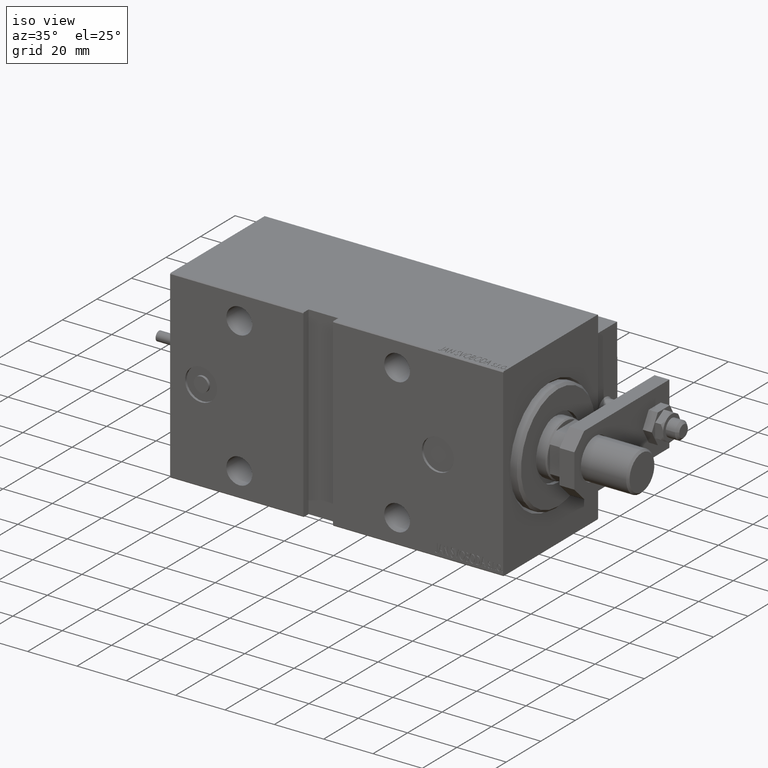
[diagram: clean part render]
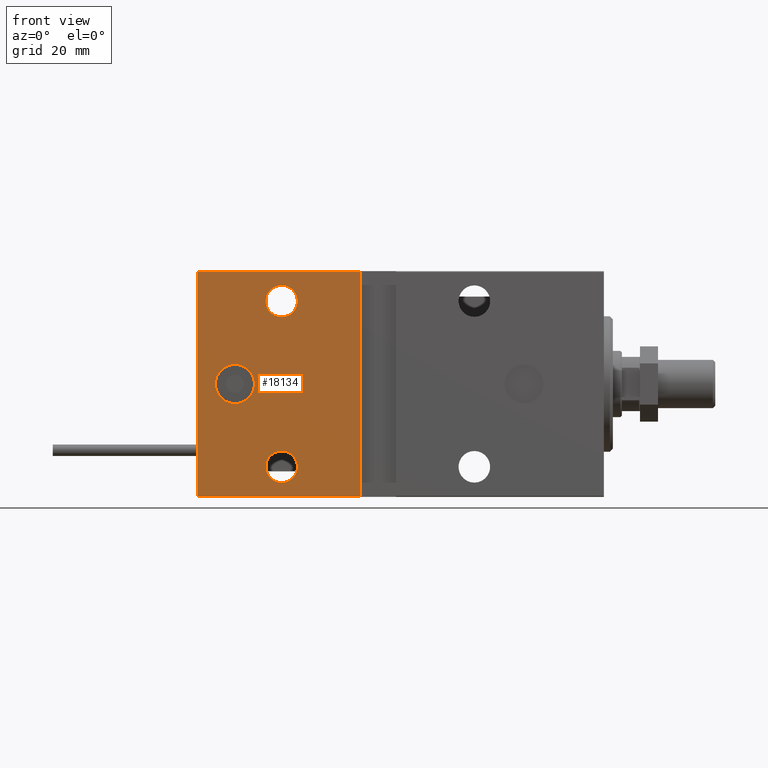
[diagram: tour spotlight — one face highlighted and labeled with its STEP entity id]
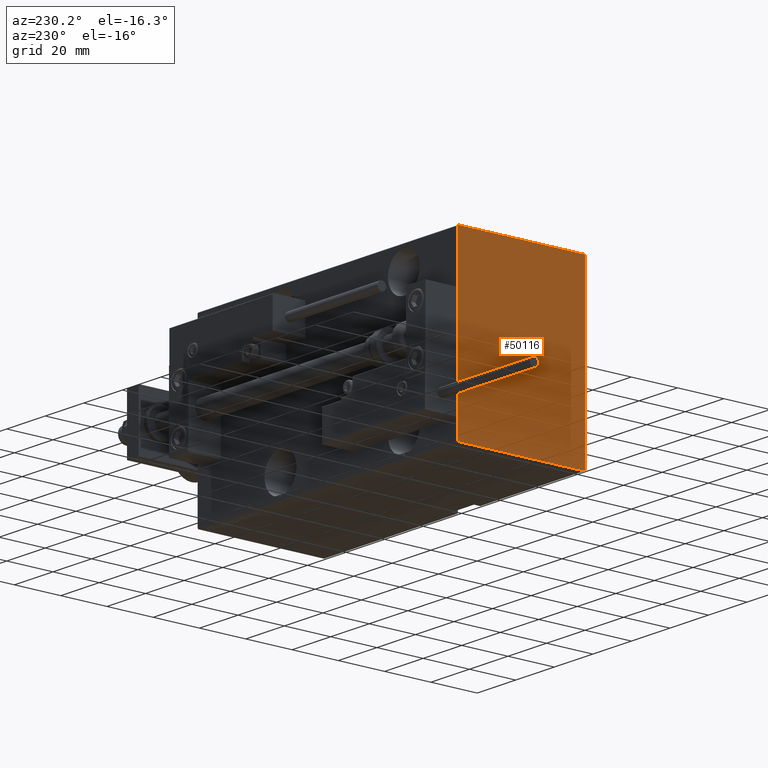
[diagram: tour spotlight — one face highlighted and labeled with its STEP entity id]
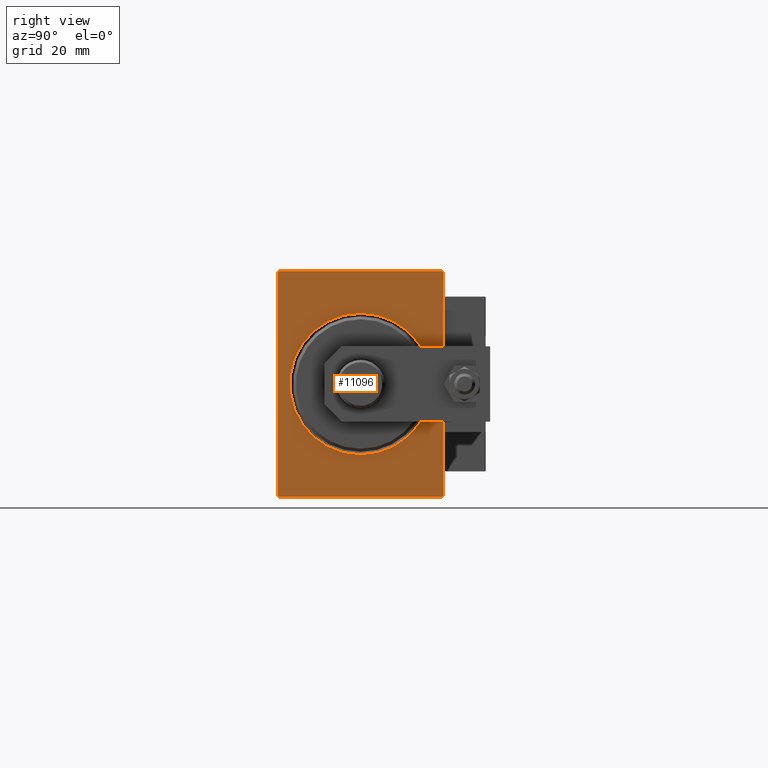
[diagram: tour spotlight — one face highlighted and labeled with its STEP entity id]
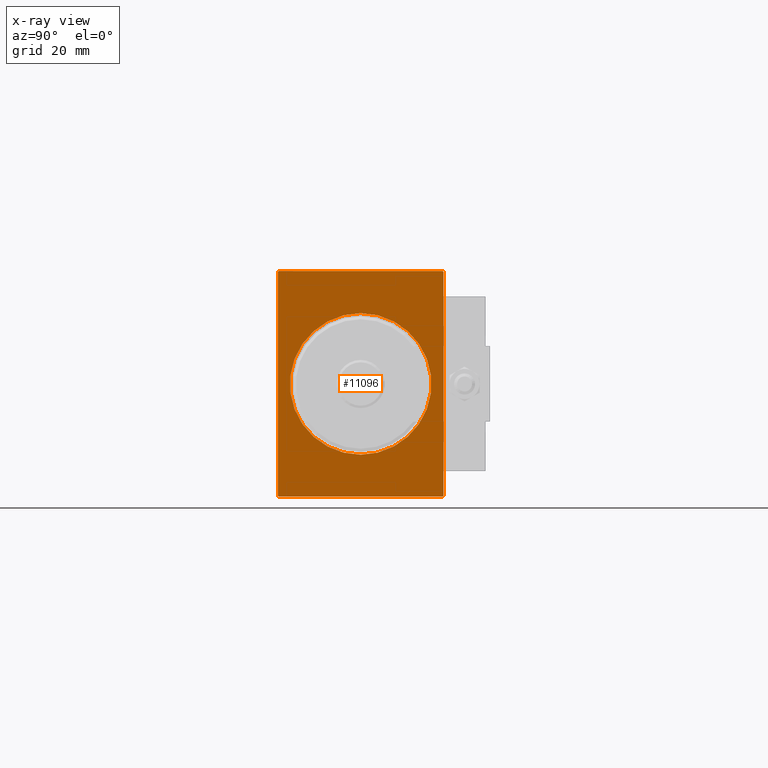
[diagram: x-ray of the same camera — body ghosted, this tour face saturated]
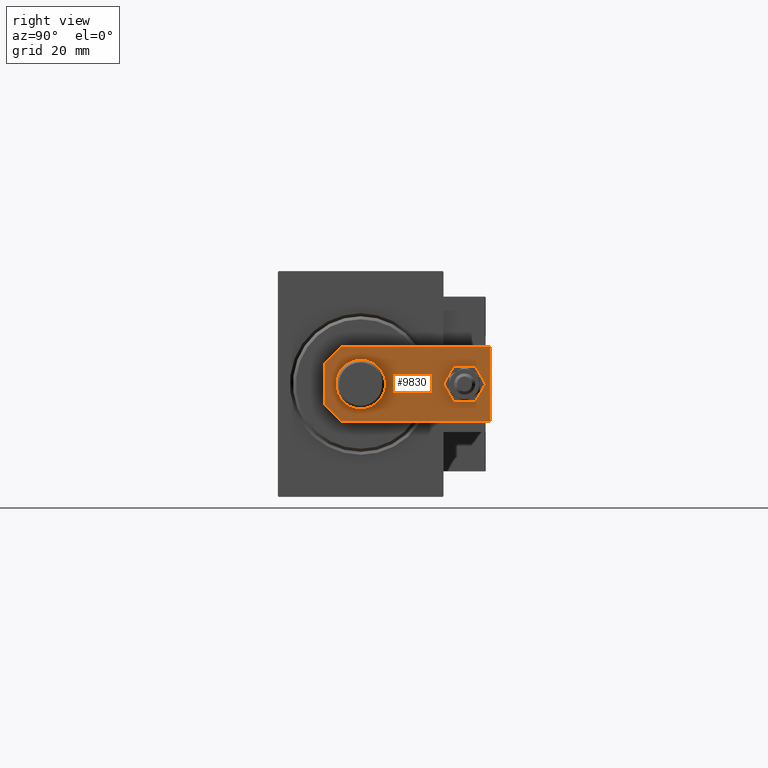
[diagram: tour spotlight — one face highlighted and labeled with its STEP entity id]
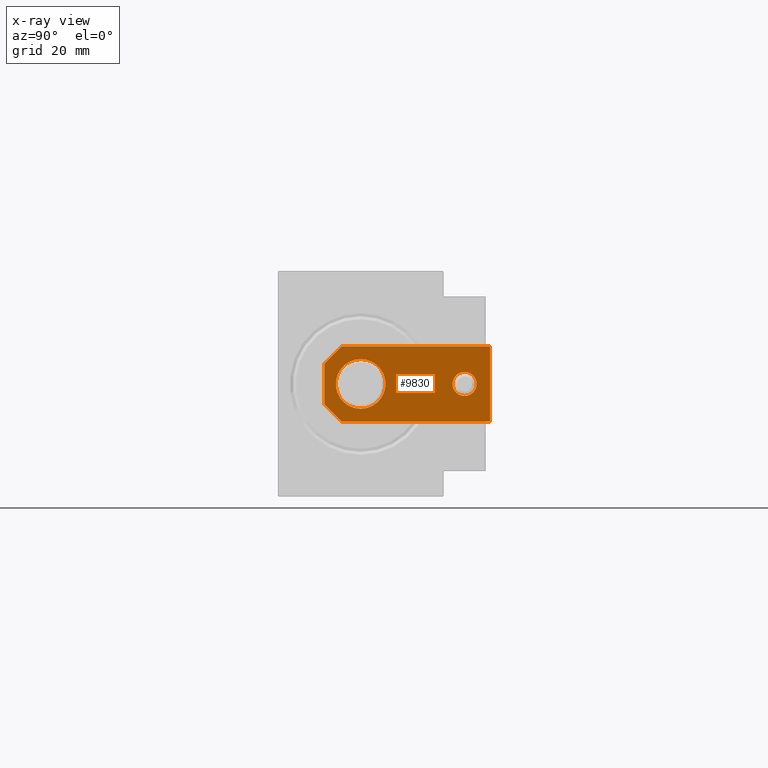
[diagram: x-ray of the same camera — body ghosted, this tour face saturated]
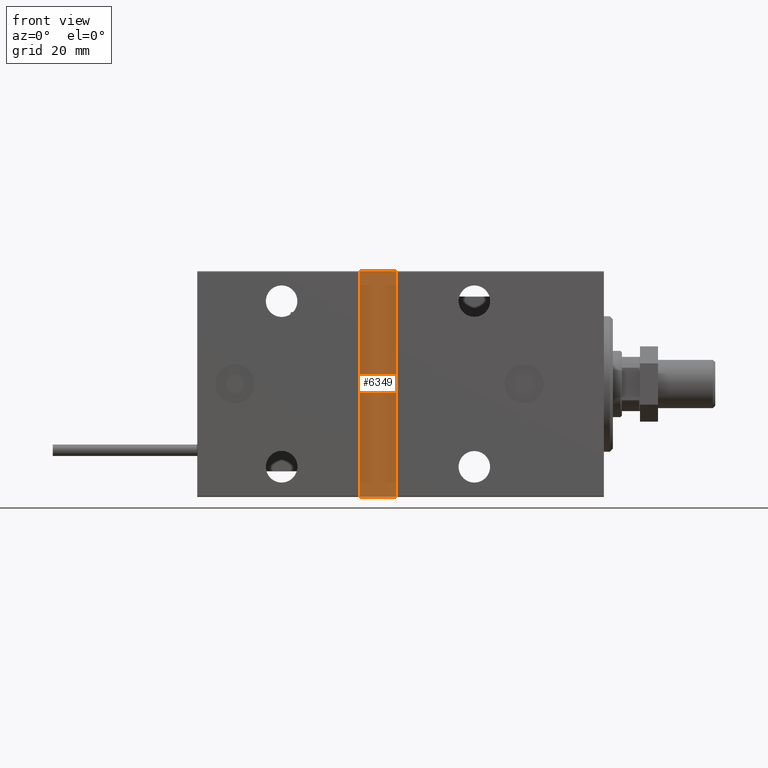
[diagram: tour spotlight — one face highlighted and labeled with its STEP entity id]
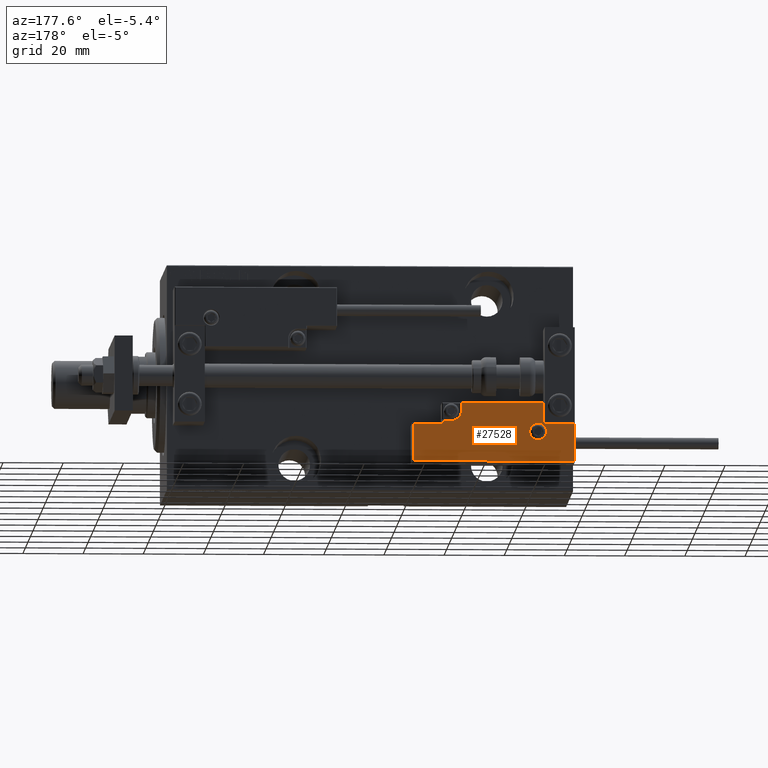
[diagram: tour spotlight — one face highlighted and labeled with its STEP entity id]
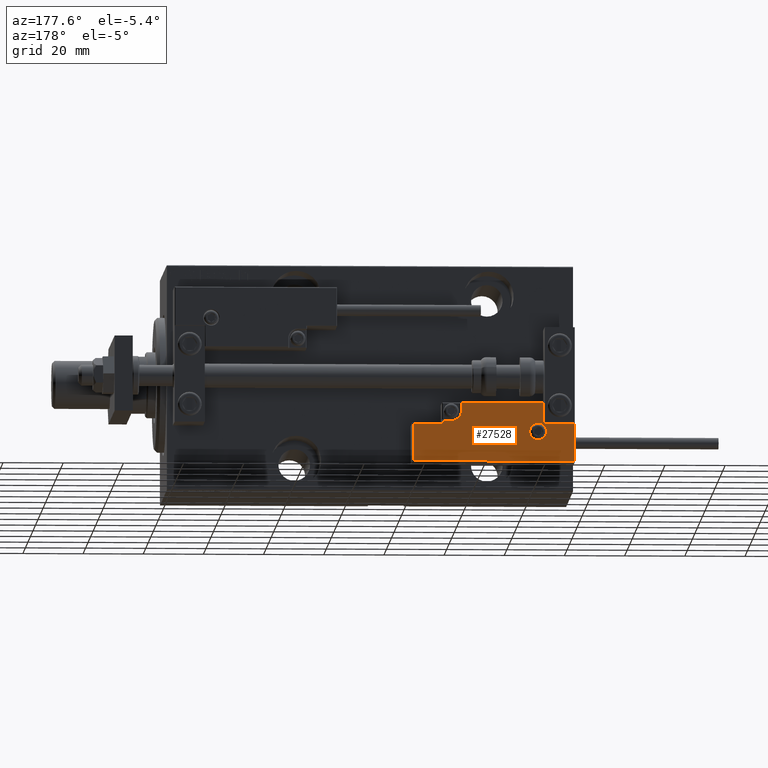
[diagram: tour spotlight — one face highlighted and labeled with its STEP entity id]
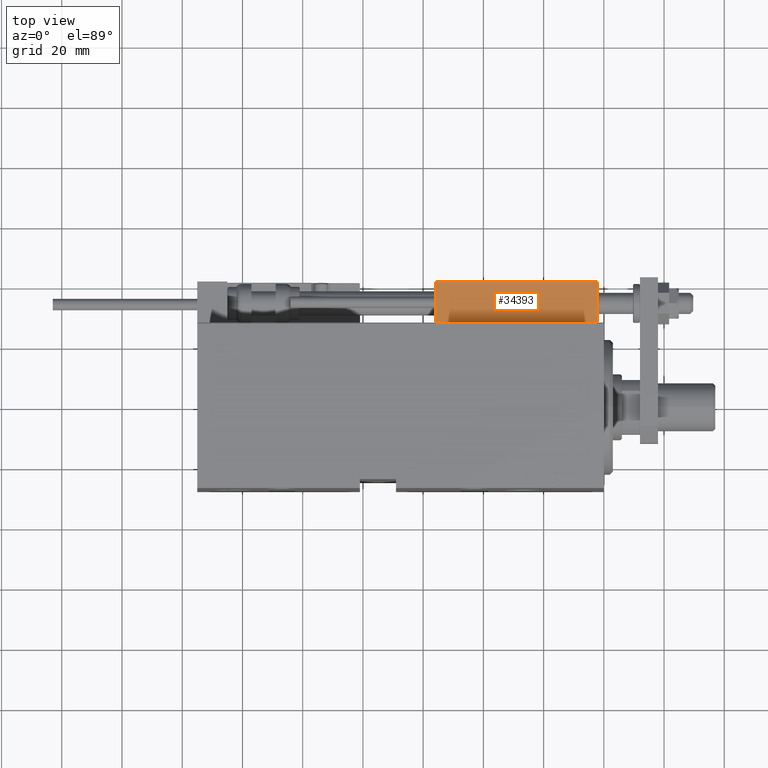
[diagram: tour spotlight — one face highlighted and labeled with its STEP entity id]
A machine part: a face-by-face anatomy tour. The part has 1296 B-rep faces; the first image is the clean iso view, then the 8 largest visible faces are spotlighted one at a time (largest first), each with its STEP entity span.

Face 1 — front view, entity #18134. In plain terms, the highlighted planar face has unit normal (-0, 1, -0).
Definition (entity closure, byte-faithful):
#1658 = CARTESIAN_POINT ( 'NONE',  ( 122.5000000000000284, 27.50000000000000000, 2.544261098099316809E-15 ) ) ;
#1789 = CARTESIAN_POINT ( 'NONE',  ( 135.0000000000000000, 27.50000000000000355, -37.50000000000000711 ) ) ;
#1995 = AXIS2_PLACEMENT_3D ( 'NONE', #14408, #29920, #45406 ) ;
#2873 = DIRECTION ( 'NONE',  ( 0.000000000000000000, 0.000000000000000000, 1.000000000000000000 ) ) ;
#3038 = DIRECTION ( 'NONE',  ( 1.850371707708591851E-16, 9.251858538542959255E-17, -1.000000000000000000 ) ) ;
#3273 = VERTEX_POINT ( 'NONE', #8808 ) ;
#5184 = DIRECTION ( 'NONE',  ( 0.000000000000000000, 0.000000000000000000, -1.000000000000000000 ) ) ;
#6310 = CARTESIAN_POINT ( 'NONE',  ( 122.5000000000000284, 27.50000000000000000, -6.500000000000012434 ) ) ;
#6478 = CARTESIAN_POINT ( 'NONE',  ( 107.0000000000000142, 27.50000000000000355, -22.25000000000000355 ) ) ;
#6907 = DIRECTION ( 'NONE',  ( 0.000000000000000000, 9.251858538542970348E-17, -1.000000000000000000 ) ) ;
#7141 = CARTESIAN_POINT ( 'NONE',  ( 81.00000000000000000, 27.49999999999999645, 37.20000000000003126 ) ) ;
#7290 = AXIS2_PLACEMENT_3D ( 'NONE', #26236, #25733, #2873 ) ;
#8415 = EDGE_CURVE ( 'NONE', #31816, #3273, #41362, .T. ) ;
#8808 = CARTESIAN_POINT ( 'NONE',  ( 122.5000000000000284, 27.50000000000000000, 6.500000000000017764 ) ) ;
#9157 = DIRECTION ( 'NONE',  ( -1.000000000000000000, 0.000000000000000000, 0.000000000000000000 ) ) ;
#9164 = DIRECTION ( 'NONE',  ( 0.000000000000000000, -9.251858538542970348E-17, 1.000000000000000000 ) ) ;
#10464 = FACE_BOUND ( 'NONE', #35102, .T. ) ;
#11415 = VECTOR ( 'NONE', #3038, 1000.000000000000000 ) ;
#11501 = EDGE_CURVE ( 'NONE', #37122, #25019, #40383, .T. ) ;
#12575 = VECTOR ( 'NONE', #45917, 1000.000000000000000 ) ;
#12613 = ORIENTED_EDGE ( 'NONE', *, *, #21554, .T. ) ;
#12637 = ORIENTED_EDGE ( 'NONE', *, *, #11501, .F. ) ;
#12957 = CARTESIAN_POINT ( 'NONE',  ( 81.00000000000001421, 27.50000000000000355, -37.19999999999999574 ) ) ;
#12960 = VERTEX_POINT ( 'NONE', #6478 ) ;
#13920 = LINE ( 'NONE', #29431, #12575 ) ;
#14408 = CARTESIAN_POINT ( 'NONE',  ( 107.0000000000000142, 27.49999999999999645, 27.49999999999999289 ) ) ;
#14453 = LINE ( 'NONE', #20667, #11415 ) ;
#14512 = FACE_BOUND ( 'NONE', #22380, .T. ) ;
#15582 = DIRECTION ( 'NONE',  ( 0.000000000000000000, 0.000000000000000000, -1.000000000000000000 ) ) ;
#15724 = CARTESIAN_POINT ( 'NONE',  ( 107.0000000000000142, 27.49999999999999645, 32.74999999999999289 ) ) ;
#17115 = CIRCLE ( 'NONE', #21950, 5.250000000000000888 ) ;
#18134 = ADVANCED_FACE ( 'NONE', ( #10464, #14512, #40952, #25473 ), #25960, .F. ) ;
#18520 = CARTESIAN_POINT ( 'NONE',  ( 107.0000000000000142, 27.50000000000000355, -27.50000000000000711 ) ) ;
#19382 = DIRECTION ( 'NONE',  ( 0.000000000000000000, -1.000000000000000000, -9.251858538542970348E-17 ) ) ;
#19832 = ORIENTED_EDGE ( 'NONE', *, *, #44058, .T. ) ;
#19867 = ORIENTED_EDGE ( 'NONE', *, *, #27093, .T. ) ;
#20667 = CARTESIAN_POINT ( 'NONE',  ( 81.00000000000001421, 27.50000000000000355, -37.50000000000009237 ) ) ;
#21554 = EDGE_CURVE ( 'NONE', #37122, #28176, #44195, .T. ) ;
#21950 = AXIS2_PLACEMENT_3D ( 'NONE', #18520, #33280, #5184 ) ;
#22380 = EDGE_LOOP ( 'NONE', ( #36911, #19832 ) ) ;
#23459 = DIRECTION ( 'NONE',  ( 0.000000000000000000, 0.000000000000000000, -1.000000000000000000 ) ) ;
#24119 = EDGE_CURVE ( 'NONE', #47238, #40929, #27083, .T. ) ;
#24549 = ORIENTED_EDGE ( 'NONE', *, *, #26116, .T. ) ;
#25019 = VERTEX_POINT ( 'NONE', #42758 ) ;
#25473 = FACE_OUTER_BOUND ( 'NONE', #36638, .T. ) ;
#25733 = DIRECTION ( 'NONE',  ( 2.465190328815661892E-32, 1.000000000000000000, 1.217002752883389755E-16 ) ) ;
#25960 = PLANE ( 'NONE',  #26206 ) ;
#26035 = CARTESIAN_POINT ( 'NONE',  ( 107.0000000000000142, 27.49999999999999645, 22.24999999999998934 ) ) ;
#26116 = EDGE_CURVE ( 'NONE', #40929, #47238, #41744, .T. ) ;
#26206 = AXIS2_PLACEMENT_3D ( 'NONE', #45507, #37384, #6907 ) ;
#26236 = CARTESIAN_POINT ( 'NONE',  ( 122.5000000000000284, 27.50000000000000000, 2.544261098099316809E-15 ) ) ;
#27083 = CIRCLE ( 'NONE', #36016, 5.250000000000004441 ) ;
#27093 = EDGE_CURVE ( 'NONE', #33657, #25019, #13920, .T. ) ;
#28176 = VERTEX_POINT ( 'NONE', #12957 ) ;
#28335 = ORIENTED_EDGE ( 'NONE', *, *, #24119, .T. ) ;
#28394 = VERTEX_POINT ( 'NONE', #39738 ) ;
#29431 = CARTESIAN_POINT ( 'NONE',  ( 135.0000000000000000, 27.49999999999999645, 37.20000000000002416 ) ) ;
#29920 = DIRECTION ( 'NONE',  ( 0.000000000000000000, -1.000000000000000000, -9.251858538542970348E-17 ) ) ;
#30837 = DIRECTION ( 'NONE',  ( 0.000000000000000000, -1.000000000000000000, -9.251858538542970348E-17 ) ) ;
#31816 = VERTEX_POINT ( 'NONE', #6310 ) ;
#32517 = CARTESIAN_POINT ( 'NONE',  ( 135.0000000000000000, 27.50000000000000355, -37.19999999999999574 ) ) ;
#33280 = DIRECTION ( 'NONE',  ( 0.000000000000000000, -1.000000000000000000, -9.251858538542970348E-17 ) ) ;
#33295 = EDGE_CURVE ( 'NONE', #3273, #31816, #41895, .T. ) ;
#33325 = CARTESIAN_POINT ( 'NONE',  ( 135.0000000000000000, 27.50000000000000355, -37.19999999999999574 ) ) ;
#33657 = VERTEX_POINT ( 'NONE', #7141 ) ;
#34633 = CARTESIAN_POINT ( 'NONE',  ( 107.0000000000000142, 27.49999999999999645, 27.49999999999999289 ) ) ;
#34838 = VECTOR ( 'NONE', #9164, 1000.000000000000000 ) ;
#34862 = CIRCLE ( 'NONE', #42144, 5.250000000000000888 ) ;
#35102 = EDGE_LOOP ( 'NONE', ( #44147, #47550 ) ) ;
#35960 = DIRECTION ( 'NONE',  ( 2.465190328815661892E-32, 1.000000000000000000, 1.217002752883389755E-16 ) ) ;
#36016 = AXIS2_PLACEMENT_3D ( 'NONE', #34633, #30837, #15582 ) ;
#36268 = AXIS2_PLACEMENT_3D ( 'NONE', #1658, #35960, #43813 ) ;
#36638 = EDGE_LOOP ( 'NONE', ( #12637, #12613, #47546, #19867 ) ) ;
#36911 = ORIENTED_EDGE ( 'NONE', *, *, #46748, .T. ) ;
#37122 = VERTEX_POINT ( 'NONE', #33325 ) ;
#37384 = DIRECTION ( 'NONE',  ( 0.000000000000000000, -1.000000000000000000, -9.251858538542970348E-17 ) ) ;
#39738 = CARTESIAN_POINT ( 'NONE',  ( 107.0000000000000142, 27.50000000000000355, -32.75000000000000711 ) ) ;
#40383 = LINE ( 'NONE', #1789, #34838 ) ;
#40929 = VERTEX_POINT ( 'NONE', #15724 ) ;
#40952 = FACE_BOUND ( 'NONE', #45930, .T. ) ;
#41362 = CIRCLE ( 'NONE', #7290, 6.500000000000015099 ) ;
#41744 = CIRCLE ( 'NONE', #1995, 5.250000000000004441 ) ;
#41895 = CIRCLE ( 'NONE', #36268, 6.500000000000015099 ) ;
#42144 = AXIS2_PLACEMENT_3D ( 'NONE', #46312, #19382, #23459 ) ;
#42758 = CARTESIAN_POINT ( 'NONE',  ( 135.0000000000000000, 27.49999999999999645, 37.20000000000002416 ) ) ;
#43813 = DIRECTION ( 'NONE',  ( 0.000000000000000000, 0.000000000000000000, 1.000000000000000000 ) ) ;
#44058 = EDGE_CURVE ( 'NONE', #28394, #12960, #34862, .T. ) ;
#44147 = ORIENTED_EDGE ( 'NONE', *, *, #33295, .F. ) ;
#44195 = LINE ( 'NONE', #32517, #44839 ) ;
#44839 = VECTOR ( 'NONE', #9157, 1000.000000000000000 ) ;
#45406 = DIRECTION ( 'NONE',  ( 0.000000000000000000, 0.000000000000000000, -1.000000000000000000 ) ) ;
#45507 = CARTESIAN_POINT ( 'NONE',  ( 135.0000000000000000, 27.50000000000000355, -37.50000000000000711 ) ) ;
#45917 = DIRECTION ( 'NONE',  ( 1.000000000000000000, 0.000000000000000000, 0.000000000000000000 ) ) ;
#45930 = EDGE_LOOP ( 'NONE', ( #24549, #28335 ) ) ;
#46312 = CARTESIAN_POINT ( 'NONE',  ( 107.0000000000000142, 27.50000000000000355, -27.50000000000000711 ) ) ;
#46694 = EDGE_CURVE ( 'NONE', #33657, #28176, #14453, .T. ) ;
#46748 = EDGE_CURVE ( 'NONE', #12960, #28394, #17115, .T. ) ;
#47238 = VERTEX_POINT ( 'NONE', #26035 ) ;
#47546 = ORIENTED_EDGE ( 'NONE', *, *, #46694, .F. ) ;
#47550 = ORIENTED_EDGE ( 'NONE', *, *, #8415, .F. ) ;

Face 2 — auxiliary view, entity #50116. In plain terms, the highlighted planar face has unit normal (-1, 0, 0).
Definition (entity closure, byte-faithful):
#53 = ORIENTED_EDGE ( 'NONE', *, *, #11856, .T. ) ;
#354 = CARTESIAN_POINT ( 'NONE',  ( 135.0000000000000000, 27.49999999999999645, 37.50000000000000711 ) ) ;
#1253 = EDGE_CURVE ( 'NONE', #4412, #43621, #43963, .T. ) ;
#1646 = CARTESIAN_POINT ( 'NONE',  ( 135.0000000000000000, -27.50000000000000000, 37.49999999999999289 ) ) ;
#1789 = CARTESIAN_POINT ( 'NONE',  ( 135.0000000000000000, 27.50000000000000355, -37.50000000000000711 ) ) ;
#2601 = VECTOR ( 'NONE', #12982, 1000.000000000000114 ) ;
#2841 = EDGE_CURVE ( 'NONE', #17031, #30329, #19669, .T. ) ;
#3720 = VERTEX_POINT ( 'NONE', #23673 ) ;
#4412 = VERTEX_POINT ( 'NONE', #9008 ) ;
#6495 = VECTOR ( 'NONE', #25000, 1000.000000000000114 ) ;
#7477 = CARTESIAN_POINT ( 'NONE',  ( 135.0000000000000000, -27.20000000000000284, 37.49999999999999289 ) ) ;
#8315 = EDGE_CURVE ( 'NONE', #25019, #17031, #17374, .T. ) ;
#9008 = CARTESIAN_POINT ( 'NONE',  ( 135.0000000000000000, -27.50000000000000000, -37.19999999999999574 ) ) ;
#9156 = ORIENTED_EDGE ( 'NONE', *, *, #2841, .T. ) ;
#9164 = DIRECTION ( 'NONE',  ( 0.000000000000000000, -9.251858538542970348E-17, 1.000000000000000000 ) ) ;
#10011 = DIRECTION ( 'NONE',  ( 0.000000000000000000, 0.000000000000000000, -1.000000000000000000 ) ) ;
#10187 = CARTESIAN_POINT ( 'NONE',  ( 135.0000000000000000, 0.000000000000000000, 0.000000000000000000 ) ) ;
#10267 = ORIENTED_EDGE ( 'NONE', *, *, #10393, .T. ) ;
#10393 = EDGE_CURVE ( 'NONE', #22490, #4412, #13804, .T. ) ;
#11501 = EDGE_CURVE ( 'NONE', #37122, #25019, #40383, .T. ) ;
#11856 = EDGE_CURVE ( 'NONE', #30329, #22490, #48436, .T. ) ;
#12122 = VECTOR ( 'NONE', #10011, 1000.000000000000000 ) ;
#12982 = DIRECTION ( 'NONE',  ( -0.000000000000000000, 0.7071067811865638930, -0.7071067811865312525 ) ) ;
#13759 = EDGE_LOOP ( 'NONE', ( #23456, #41741, #31131, #36439, #9156, #53, #10267, #31104 ) ) ;
#13804 = LINE ( 'NONE', #1646, #12122 ) ;
#14134 = CARTESIAN_POINT ( 'NONE',  ( 135.0000000000000000, -27.19999999999997797, -37.50000000000000711 ) ) ;
#14642 = DIRECTION ( 'NONE',  ( 0.000000000000000000, -0.7071067811865352493, -0.7071067811865597852 ) ) ;
#15083 = DIRECTION ( 'NONE',  ( -0.000000000000000000, 0.7071067811865271446, 0.7071067811865678898 ) ) ;
#15401 = VECTOR ( 'NONE', #14642, 1000.000000000000000 ) ;
#15867 = DIRECTION ( 'NONE',  ( 0.000000000000000000, -1.000000000000000000, -2.523234146875355998E-16 ) ) ;
#17031 = VERTEX_POINT ( 'NONE', #44070 ) ;
#17374 = LINE ( 'NONE', #43790, #6495 ) ;
#18793 = FACE_OUTER_BOUND ( 'NONE', #13759, .T. ) ;
#19669 = LINE ( 'NONE', #354, #48168 ) ;
#19854 = VECTOR ( 'NONE', #33911, 1000.000000000000000 ) ;
#20836 = CARTESIAN_POINT ( 'NONE',  ( 135.0000000000000000, -27.50000000000000000, 37.19999999999998153 ) ) ;
#21915 = VECTOR ( 'NONE', #15083, 1000.000000000000114 ) ;
#22112 = PLANE ( 'NONE',  #26964 ) ;
#22490 = VERTEX_POINT ( 'NONE', #20836 ) ;
#23456 = ORIENTED_EDGE ( 'NONE', *, *, #26389, .T. ) ;
#23673 = CARTESIAN_POINT ( 'NONE',  ( 135.0000000000000000, 27.20000000000001350, -37.50000000000000711 ) ) ;
#25000 = DIRECTION ( 'NONE',  ( -0.000000000000000000, -0.7071067811865474617, 0.7071067811865474617 ) ) ;
#25019 = VERTEX_POINT ( 'NONE', #42758 ) ;
#26022 = LINE ( 'NONE', #41758, #21915 ) ;
#26049 = CARTESIAN_POINT ( 'NONE',  ( 135.0000000000000000, -27.50000000000000000, -37.50000000000000711 ) ) ;
#26389 = EDGE_CURVE ( 'NONE', #43621, #3720, #41038, .T. ) ;
#26964 = AXIS2_PLACEMENT_3D ( 'NONE', #10187, #34298, #34043 ) ;
#30329 = VERTEX_POINT ( 'NONE', #7477 ) ;
#31104 = ORIENTED_EDGE ( 'NONE', *, *, #1253, .T. ) ;
#31131 = ORIENTED_EDGE ( 'NONE', *, *, #11501, .T. ) ;
#33325 = CARTESIAN_POINT ( 'NONE',  ( 135.0000000000000000, 27.50000000000000355, -37.19999999999999574 ) ) ;
#33911 = DIRECTION ( 'NONE',  ( 0.000000000000000000, 1.000000000000000000, 0.000000000000000000 ) ) ;
#33946 = CARTESIAN_POINT ( 'NONE',  ( 135.0000000000000000, -32.35000000000047038, 32.34999999999934772 ) ) ;
#34043 = DIRECTION ( 'NONE',  ( 0.000000000000000000, 0.000000000000000000, -1.000000000000000000 ) ) ;
#34298 = DIRECTION ( 'NONE',  ( 1.000000000000000000, 0.000000000000000000, 0.000000000000000000 ) ) ;
#34838 = VECTOR ( 'NONE', #9164, 1000.000000000000000 ) ;
#36439 = ORIENTED_EDGE ( 'NONE', *, *, #8315, .T. ) ;
#37122 = VERTEX_POINT ( 'NONE', #33325 ) ;
#40383 = LINE ( 'NONE', #1789, #34838 ) ;
#41038 = LINE ( 'NONE', #26049, #19854 ) ;
#41741 = ORIENTED_EDGE ( 'NONE', *, *, #44965, .T. ) ;
#41758 = CARTESIAN_POINT ( 'NONE',  ( 135.0000000000000000, 32.35000000000079012, -32.34999999999892140 ) ) ;
#42758 = CARTESIAN_POINT ( 'NONE',  ( 135.0000000000000000, 27.49999999999999645, 37.20000000000002416 ) ) ;
#43621 = VERTEX_POINT ( 'NONE', #14134 ) ;
#43707 = CARTESIAN_POINT ( 'NONE',  ( 135.0000000000000000, -32.34999999999936193, -32.35000000000085407 ) ) ;
#43790 = CARTESIAN_POINT ( 'NONE',  ( 135.0000000000000000, 32.35000000000000853, 32.35000000000000853 ) ) ;
#43963 = LINE ( 'NONE', #43707, #2601 ) ;
#44070 = CARTESIAN_POINT ( 'NONE',  ( 135.0000000000000000, 27.20000000000001705, 37.50000000000000711 ) ) ;
#44965 = EDGE_CURVE ( 'NONE', #3720, #37122, #26022, .T. ) ;
#48168 = VECTOR ( 'NONE', #15867, 1000.000000000000000 ) ;
#48436 = LINE ( 'NONE', #33946, #15401 ) ;
#50116 = ADVANCED_FACE ( 'NONE', ( #18793 ), #22112, .T. ) ;

Face 3 — right view, entity #11096. An x-ray twin of the same camera follows (body ghosted, this face saturated) — the face is partly hidden behind the body. In plain terms, the highlighted planar face has unit normal (-1, 0, 0).
Definition (entity closure, byte-faithful):
#300 = EDGE_CURVE ( 'NONE', #9531, #40322, #20846, .T. ) ;
#650 = ORIENTED_EDGE ( 'NONE', *, *, #9937, .T. ) ;
#772 = VECTOR ( 'NONE', #6903, 1000.000000000000000 ) ;
#2568 = VERTEX_POINT ( 'NONE', #49710 ) ;
#3222 = AXIS2_PLACEMENT_3D ( 'NONE', #15948, #12399, #8600 ) ;
#4342 = VECTOR ( 'NONE', #16557, 1000.000000000000114 ) ;
#4696 = CARTESIAN_POINT ( 'NONE',  ( 0.000000000000000000, -27.50000000000000000, 37.19999999999998153 ) ) ;
#5230 = ORIENTED_EDGE ( 'NONE', *, *, #300, .F. ) ;
#5839 = VECTOR ( 'NONE', #43298, 1000.000000000000000 ) ;
#5966 = ORIENTED_EDGE ( 'NONE', *, *, #45386, .F. ) ;
#6903 = DIRECTION ( 'NONE',  ( 0.000000000000000000, -9.251858538542970348E-17, 1.000000000000000000 ) ) ;
#7669 = LINE ( 'NONE', #11981, #43009 ) ;
#8167 = DIRECTION ( 'NONE',  ( 0.000000000000000000, 0.000000000000000000, -1.000000000000000000 ) ) ;
#8600 = DIRECTION ( 'NONE',  ( 0.000000000000000000, 0.000000000000000000, -1.000000000000000000 ) ) ;
#8952 = LINE ( 'NONE', #9692, #16455 ) ;
#9424 = DIRECTION ( 'NONE',  ( 0.000000000000000000, -1.000000000000000000, -2.523234146875355998E-16 ) ) ;
#9531 = VERTEX_POINT ( 'NONE', #27754 ) ;
#9692 = CARTESIAN_POINT ( 'NONE',  ( 0.000000000000000000, 27.50000000000000355, -37.19999999999999574 ) ) ;
#9937 = EDGE_CURVE ( 'NONE', #45476, #32604, #21039, .T. ) ;
#11096 = ADVANCED_FACE ( 'NONE', ( #23076, #47177 ), #12152, .F. ) ;
#11981 = CARTESIAN_POINT ( 'NONE',  ( 0.000000000000000000, -27.50000000000000000, 37.49999999999999289 ) ) ;
#12152 = PLANE ( 'NONE',  #3222 ) ;
#12399 = DIRECTION ( 'NONE',  ( 1.000000000000000000, 0.000000000000000000, 0.000000000000000000 ) ) ;
#12506 = CIRCLE ( 'NONE', #43318, 23.50000000000003197 ) ;
#13195 = VECTOR ( 'NONE', #9424, 1000.000000000000000 ) ;
#13398 = EDGE_CURVE ( 'NONE', #48598, #36157, #20094, .T. ) ;
#15245 = DIRECTION ( 'NONE',  ( 1.000000000000000000, 0.000000000000000000, 0.000000000000000000 ) ) ;
#15516 = EDGE_LOOP ( 'NONE', ( #650, #37171 ) ) ;
#15948 = CARTESIAN_POINT ( 'NONE',  ( 0.000000000000000000, 0.000000000000000000, 0.000000000000000000 ) ) ;
#16113 = EDGE_CURVE ( 'NONE', #2568, #40322, #20439, .T. ) ;
#16455 = VECTOR ( 'NONE', #33050, 1000.000000000000114 ) ;
#16557 = DIRECTION ( 'NONE',  ( -0.000000000000000000, 0.7071067811865474617, -0.7071067811865474617 ) ) ;
#17049 = CARTESIAN_POINT ( 'NONE',  ( 0.000000000000000000, 0.000000000000000000, 23.50000000000003197 ) ) ;
#18539 = LINE ( 'NONE', #41899, #30960 ) ;
#19809 = EDGE_CURVE ( 'NONE', #9531, #32715, #42707, .T. ) ;
#20078 = CARTESIAN_POINT ( 'NONE',  ( 0.000000000000000000, 27.49999999999999645, 37.50000000000000711 ) ) ;
#20094 = LINE ( 'NONE', #39393, #26826 ) ;
#20439 = LINE ( 'NONE', #4696, #5839 ) ;
#20846 = LINE ( 'NONE', #20078, #13195 ) ;
#21039 = CIRCLE ( 'NONE', #25102, 23.50000000000003197 ) ;
#21158 = CARTESIAN_POINT ( 'NONE',  ( 0.000000000000000000, -27.20000000000000284, 37.49999999999999289 ) ) ;
#21976 = VERTEX_POINT ( 'NONE', #30828 ) ;
#22333 = EDGE_CURVE ( 'NONE', #32604, #45476, #12506, .T. ) ;
#22632 = DIRECTION ( 'NONE',  ( 0.000000000000000000, 0.000000000000000000, -1.000000000000000000 ) ) ;
#23076 = FACE_BOUND ( 'NONE', #15516, .T. ) ;
#25102 = AXIS2_PLACEMENT_3D ( 'NONE', #42911, #15245, #31256 ) ;
#26208 = LINE ( 'NONE', #41691, #772 ) ;
#26446 = CARTESIAN_POINT ( 'NONE',  ( 0.000000000000000000, 0.000000000000000000, 0.000000000000000000 ) ) ;
#26826 = VECTOR ( 'NONE', #31789, 1000.000000000000114 ) ;
#27754 = CARTESIAN_POINT ( 'NONE',  ( 0.000000000000000000, 27.20000000000001705, 37.50000000000000711 ) ) ;
#29736 = DIRECTION ( 'NONE',  ( 0.000000000000000000, 1.000000000000000000, 0.000000000000000000 ) ) ;
#30828 = CARTESIAN_POINT ( 'NONE',  ( 0.000000000000000000, 27.20000000000001350, -37.50000000000000711 ) ) ;
#30960 = VECTOR ( 'NONE', #29736, 1000.000000000000000 ) ;
#31256 = DIRECTION ( 'NONE',  ( 0.000000000000000000, 0.000000000000000000, -1.000000000000000000 ) ) ;
#31547 = CARTESIAN_POINT ( 'NONE',  ( 0.000000000000000000, -27.19999999999997797, -37.50000000000000711 ) ) ;
#31789 = DIRECTION ( 'NONE',  ( -0.000000000000000000, -0.7071067811865638930, 0.7071067811865312525 ) ) ;
#32578 = CARTESIAN_POINT ( 'NONE',  ( 0.000000000000000000, 27.49999999999999645, 37.20000000000002416 ) ) ;
#32604 = VERTEX_POINT ( 'NONE', #42976 ) ;
#32715 = VERTEX_POINT ( 'NONE', #32578 ) ;
#33050 = DIRECTION ( 'NONE',  ( 0.000000000000000000, -0.7071067811865271446, -0.7071067811865678898 ) ) ;
#33658 = CARTESIAN_POINT ( 'NONE',  ( 0.000000000000000000, 27.50000000000000355, -37.19999999999999574 ) ) ;
#34684 = ORIENTED_EDGE ( 'NONE', *, *, #13398, .T. ) ;
#35354 = CARTESIAN_POINT ( 'NONE',  ( 0.000000000000000000, 27.20000000000001705, 37.50000000000000711 ) ) ;
#36157 = VERTEX_POINT ( 'NONE', #43369 ) ;
#36375 = ORIENTED_EDGE ( 'NONE', *, *, #19809, .T. ) ;
#37171 = ORIENTED_EDGE ( 'NONE', *, *, #22333, .T. ) ;
#37264 = EDGE_LOOP ( 'NONE', ( #5230, #36375, #42548, #49107, #45135, #34684, #5966, #39231 ) ) ;
#39231 = ORIENTED_EDGE ( 'NONE', *, *, #16113, .T. ) ;
#39305 = VERTEX_POINT ( 'NONE', #33658 ) ;
#39393 = CARTESIAN_POINT ( 'NONE',  ( 0.000000000000000000, -27.19999999999997797, -37.50000000000000711 ) ) ;
#40322 = VERTEX_POINT ( 'NONE', #21158 ) ;
#41691 = CARTESIAN_POINT ( 'NONE',  ( 0.000000000000000000, 27.50000000000000355, -37.50000000000000711 ) ) ;
#41899 = CARTESIAN_POINT ( 'NONE',  ( 0.000000000000000000, -27.50000000000000000, -37.50000000000000711 ) ) ;
#42548 = ORIENTED_EDGE ( 'NONE', *, *, #44358, .F. ) ;
#42679 = DIRECTION ( 'NONE',  ( 1.000000000000000000, 0.000000000000000000, 0.000000000000000000 ) ) ;
#42707 = LINE ( 'NONE', #35354, #4342 ) ;
#42911 = CARTESIAN_POINT ( 'NONE',  ( 0.000000000000000000, 0.000000000000000000, 0.000000000000000000 ) ) ;
#42976 = CARTESIAN_POINT ( 'NONE',  ( 0.000000000000000000, 2.877919977996283870E-15, -23.50000000000003197 ) ) ;
#43009 = VECTOR ( 'NONE', #8167, 1000.000000000000000 ) ;
#43298 = DIRECTION ( 'NONE',  ( -0.000000000000000000, 0.7071067811865352493, 0.7071067811865597852 ) ) ;
#43318 = AXIS2_PLACEMENT_3D ( 'NONE', #26446, #42679, #22632 ) ;
#43369 = CARTESIAN_POINT ( 'NONE',  ( 0.000000000000000000, -27.50000000000000000, -37.19999999999999574 ) ) ;
#44358 = EDGE_CURVE ( 'NONE', #39305, #32715, #26208, .T. ) ;
#45135 = ORIENTED_EDGE ( 'NONE', *, *, #48812, .F. ) ;
#45386 = EDGE_CURVE ( 'NONE', #2568, #36157, #7669, .T. ) ;
#45476 = VERTEX_POINT ( 'NONE', #17049 ) ;
#47177 = FACE_OUTER_BOUND ( 'NONE', #37264, .T. ) ;
#48598 = VERTEX_POINT ( 'NONE', #31547 ) ;
#48812 = EDGE_CURVE ( 'NONE', #48598, #21976, #18539, .T. ) ;
#49107 = ORIENTED_EDGE ( 'NONE', *, *, #50078, .T. ) ;
#49710 = CARTESIAN_POINT ( 'NONE',  ( 0.000000000000000000, -27.50000000000000000, 37.19999999999998153 ) ) ;
#50078 = EDGE_CURVE ( 'NONE', #39305, #21976, #8952, .T. ) ;

Face 4 — right view, entity #9830. An x-ray twin of the same camera follows (body ghosted, this face saturated) — the face is partly hidden behind the body. In plain terms, the highlighted planar face has unit normal (1, 0, -0).
Definition (entity closure, byte-faithful):
#758 = ORIENTED_EDGE ( 'NONE', *, *, #34213, .T. ) ;
#946 = ORIENTED_EDGE ( 'NONE', *, *, #9872, .T. ) ;
#2462 = CARTESIAN_POINT ( 'NONE',  ( 3.419999999999990603, -3.419999999999999485, 6.000000000000000000 ) ) ;
#2576 = CARTESIAN_POINT ( 'NONE',  ( -12.50000000000000355, 4.814824860968089633E-32, 6.000000000000000000 ) ) ;
#4174 = DIRECTION ( 'NONE',  ( 0.000000000000000000, 0.000000000000000000, 1.000000000000000000 ) ) ;
#5328 = EDGE_CURVE ( 'NONE', #12050, #38145, #6686, .T. ) ;
#5349 = CARTESIAN_POINT ( 'NONE',  ( 4.000000000000000888, 46.50000000000000000, 6.000000000000000000 ) ) ;
#5589 = AXIS2_PLACEMENT_3D ( 'NONE', #49787, #41162, #33557 ) ;
#6324 = AXIS2_PLACEMENT_3D ( 'NONE', #21405, #6653, #6397 ) ;
#6397 = DIRECTION ( 'NONE',  ( 1.000000000000000000, 0.000000000000000000, 0.000000000000000000 ) ) ;
#6653 = DIRECTION ( 'NONE',  ( 0.000000000000000000, 0.000000000000000000, 1.000000000000000000 ) ) ;
#6686 = LINE ( 'NONE', #22928, #30745 ) ;
#7678 = VERTEX_POINT ( 'NONE', #23363 ) ;
#8338 = ORIENTED_EDGE ( 'NONE', *, *, #23555, .T. ) ;
#8392 = CARTESIAN_POINT ( 'NONE',  ( 12.50000000000000000, 55.00000000000000000, 6.000000000000000000 ) ) ;
#9830 = ADVANCED_FACE ( 'NONE', ( #10684, #37853, #29741 ), #25682, .T. ) ;
#9872 = EDGE_CURVE ( 'NONE', #37236, #37127, #39608, .T. ) ;
#9965 = CIRCLE ( 'NONE', #11599, 4.000000000000000888 ) ;
#10684 = FACE_BOUND ( 'NONE', #42974, .T. ) ;
#11272 = EDGE_CURVE ( 'NONE', #7678, #15575, #23501, .T. ) ;
#11599 = AXIS2_PLACEMENT_3D ( 'NONE', #16524, #16774, #28208 ) ;
#11996 = EDGE_LOOP ( 'NONE', ( #23197, #42683, #15153, #8338, #758, #946 ) ) ;
#12050 = VERTEX_POINT ( 'NONE', #32660 ) ;
#12202 = DIRECTION ( 'NONE',  ( -1.000000000000000000, 0.000000000000000000, 0.000000000000000000 ) ) ;
#15153 = ORIENTED_EDGE ( 'NONE', *, *, #22192, .T. ) ;
#15575 = VERTEX_POINT ( 'NONE', #23885 ) ;
#15598 = DIRECTION ( 'NONE',  ( -9.462128050782584375E-17, -1.000000000000000000, 0.000000000000000000 ) ) ;
#15612 = CARTESIAN_POINT ( 'NONE',  ( -9.629649721936179265E-32, 11.99999999999999645, 6.000000000000000000 ) ) ;
#15902 = AXIS2_PLACEMENT_3D ( 'NONE', #34577, #50055, #18822 ) ;
#16524 = CARTESIAN_POINT ( 'NONE',  ( -1.432611055310774642E-16, 46.50000000000000000, 6.000000000000000000 ) ) ;
#16774 = DIRECTION ( 'NONE',  ( 0.000000000000000000, 0.000000000000000000, 1.000000000000000000 ) ) ;
#17167 = CARTESIAN_POINT ( 'NONE',  ( -6.840000000000012292, 4.814824860968089633E-32, 6.000000000000000000 ) ) ;
#17823 = LINE ( 'NONE', #2576, #38455 ) ;
#18069 = ORIENTED_EDGE ( 'NONE', *, *, #21469, .F. ) ;
#18822 = DIRECTION ( 'NONE',  ( 1.000000000000000000, 0.000000000000000000, 0.000000000000000000 ) ) ;
#20041 = VECTOR ( 'NONE', #24792, 1000.000000000000000 ) ;
#21142 = CARTESIAN_POINT ( 'NONE',  ( -4.000000000000000888, 46.50000000000000000, 6.000000000000000000 ) ) ;
#21217 = LINE ( 'NONE', #37192, #20041 ) ;
#21263 = VERTEX_POINT ( 'NONE', #21142 ) ;
#21405 = CARTESIAN_POINT ( 'NONE',  ( -1.432611055310774642E-16, 46.50000000000000000, 6.000000000000000000 ) ) ;
#21469 = EDGE_CURVE ( 'NONE', #21263, #28838, #9965, .T. ) ;
#21883 = CARTESIAN_POINT ( 'NONE',  ( 12.50000000000000000, 55.00000000000000000, 6.000000000000000000 ) ) ;
#22192 = EDGE_CURVE ( 'NONE', #38145, #49109, #17823, .T. ) ;
#22928 = CARTESIAN_POINT ( 'NONE',  ( -3.420000000000013696, -3.420000000000006146, 6.000000000000000000 ) ) ;
#23197 = ORIENTED_EDGE ( 'NONE', *, *, #46101, .T. ) ;
#23363 = CARTESIAN_POINT ( 'NONE',  ( 8.250000000000000000, 11.99999999999999822, 6.000000000000000000 ) ) ;
#23501 = CIRCLE ( 'NONE', #29191, 8.250000000000000000 ) ;
#23555 = EDGE_CURVE ( 'NONE', #49109, #43652, #33702, .T. ) ;
#23885 = CARTESIAN_POINT ( 'NONE',  ( -8.250000000000000000, 11.99999999999999645, 6.000000000000000000 ) ) ;
#24247 = DIRECTION ( 'NONE',  ( 1.000000000000000000, 0.000000000000000000, 0.000000000000000000 ) ) ;
#24792 = DIRECTION ( 'NONE',  ( -6.308085367188389994E-17, 1.000000000000000000, 0.000000000000000000 ) ) ;
#25682 = PLANE ( 'NONE',  #5589 ) ;
#26204 = CARTESIAN_POINT ( 'NONE',  ( -12.49999999999999822, 55.00000000000000000, 6.000000000000000000 ) ) ;
#27329 = EDGE_LOOP ( 'NONE', ( #49990, #48492 ) ) ;
#28208 = DIRECTION ( 'NONE',  ( 1.000000000000000000, 0.000000000000000000, 0.000000000000000000 ) ) ;
#28423 = ORIENTED_EDGE ( 'NONE', *, *, #40403, .F. ) ;
#28838 = VERTEX_POINT ( 'NONE', #5349 ) ;
#29160 = VECTOR ( 'NONE', #12202, 1000.000000000000000 ) ;
#29191 = AXIS2_PLACEMENT_3D ( 'NONE', #15612, #4174, #24247 ) ;
#29511 = EDGE_CURVE ( 'NONE', #15575, #7678, #46723, .T. ) ;
#29638 = CARTESIAN_POINT ( 'NONE',  ( 12.50000000000000355, 5.659999999999991260, 6.000000000000000000 ) ) ;
#29741 = FACE_BOUND ( 'NONE', #27329, .T. ) ;
#30147 = DIRECTION ( 'NONE',  ( 0.7071067811865483499, 0.7071067811865465735, -0.000000000000000000 ) ) ;
#30745 = VECTOR ( 'NONE', #37666, 1000.000000000000000 ) ;
#32660 = CARTESIAN_POINT ( 'NONE',  ( -12.50000000000000355, 5.660000000000005471, 6.000000000000000000 ) ) ;
#32746 = VECTOR ( 'NONE', #30147, 1000.000000000000114 ) ;
#33557 = DIRECTION ( 'NONE',  ( 1.000000000000000000, 0.000000000000000000, 0.000000000000000000 ) ) ;
#33702 = LINE ( 'NONE', #2462, #32746 ) ;
#34213 = EDGE_CURVE ( 'NONE', #43652, #37236, #21217, .T. ) ;
#34577 = CARTESIAN_POINT ( 'NONE',  ( -9.629649721936179265E-32, 11.99999999999999645, 6.000000000000000000 ) ) ;
#37127 = VERTEX_POINT ( 'NONE', #26204 ) ;
#37192 = CARTESIAN_POINT ( 'NONE',  ( 12.50000000000000355, 4.814824860968089633E-32, 6.000000000000000000 ) ) ;
#37236 = VERTEX_POINT ( 'NONE', #21883 ) ;
#37360 = VECTOR ( 'NONE', #15598, 1000.000000000000000 ) ;
#37666 = DIRECTION ( 'NONE',  ( 0.7071067811865467956, -0.7071067811865483499, 0.000000000000000000 ) ) ;
#37853 = FACE_OUTER_BOUND ( 'NONE', #11996, .T. ) ;
#38145 = VERTEX_POINT ( 'NONE', #17167 ) ;
#38455 = VECTOR ( 'NONE', #44740, 1000.000000000000000 ) ;
#39453 = CARTESIAN_POINT ( 'NONE',  ( -12.49999999999999822, 55.00000000000000000, 6.000000000000000000 ) ) ;
#39608 = LINE ( 'NONE', #8392, #29160 ) ;
#40026 = CARTESIAN_POINT ( 'NONE',  ( 6.839999999999998970, 4.814824860968089633E-32, 6.000000000000000000 ) ) ;
#40403 = EDGE_CURVE ( 'NONE', #28838, #21263, #41208, .T. ) ;
#41162 = DIRECTION ( 'NONE',  ( -0.000000000000000000, 0.000000000000000000, 1.000000000000000000 ) ) ;
#41208 = CIRCLE ( 'NONE', #6324, 4.000000000000000888 ) ;
#42518 = LINE ( 'NONE', #39453, #37360 ) ;
#42683 = ORIENTED_EDGE ( 'NONE', *, *, #5328, .T. ) ;
#42974 = EDGE_LOOP ( 'NONE', ( #18069, #28423 ) ) ;
#43652 = VERTEX_POINT ( 'NONE', #29638 ) ;
#44740 = DIRECTION ( 'NONE',  ( 1.000000000000000000, 0.000000000000000000, 0.000000000000000000 ) ) ;
#46101 = EDGE_CURVE ( 'NONE', #37127, #12050, #42518, .T. ) ;
#46723 = CIRCLE ( 'NONE', #15902, 8.250000000000000000 ) ;
#48492 = ORIENTED_EDGE ( 'NONE', *, *, #11272, .F. ) ;
#49109 = VERTEX_POINT ( 'NONE', #40026 ) ;
#49787 = CARTESIAN_POINT ( 'NONE',  ( 0.000000000000000000, 0.000000000000000000, 6.000000000000000000 ) ) ;
#49990 = ORIENTED_EDGE ( 'NONE', *, *, #29511, .F. ) ;
#50055 = DIRECTION ( 'NONE',  ( 0.000000000000000000, 0.000000000000000000, 1.000000000000000000 ) ) ;

Face 5 — front view, entity #6349. In plain terms, the highlighted planar face has unit normal (-0, 1, -0).
Definition (entity closure, byte-faithful):
#1202 = CARTESIAN_POINT ( 'NONE',  ( 69.00000000000000000, 24.50000000000000355, -37.50000000000009237 ) ) ;
#2954 = CARTESIAN_POINT ( 'NONE',  ( 81.00000000000000000, 24.49999999999999645, 37.50000000000000711 ) ) ;
#4083 = FACE_OUTER_BOUND ( 'NONE', #44772, .T. ) ;
#6276 = LINE ( 'NONE', #21767, #8927 ) ;
#6349 = ADVANCED_FACE ( 'NONE', ( #4083 ), #32043, .F. ) ;
#6642 = ORIENTED_EDGE ( 'NONE', *, *, #44577, .T. ) ;
#8927 = VECTOR ( 'NONE', #28414, 1000.000000000000000 ) ;
#10031 = LINE ( 'NONE', #25529, #21673 ) ;
#12729 = DIRECTION ( 'NONE',  ( 0.000000000000000000, -1.000000000000000000, -9.251858538542959255E-17 ) ) ;
#12879 = DIRECTION ( 'NONE',  ( 0.000000000000000000, -9.251858538542959255E-17, 1.000000000000000000 ) ) ;
#15044 = LINE ( 'NONE', #21917, #48031 ) ;
#15087 = VERTEX_POINT ( 'NONE', #48897 ) ;
#15784 = CARTESIAN_POINT ( 'NONE',  ( 0.000000000000000000, 24.50000000000000000, 2.165775976068010180E-15 ) ) ;
#19722 = VERTEX_POINT ( 'NONE', #22921 ) ;
#20189 = AXIS2_PLACEMENT_3D ( 'NONE', #15784, #12729, #23660 ) ;
#21673 = VECTOR ( 'NONE', #21699, 1000.000000000000000 ) ;
#21699 = DIRECTION ( 'NONE',  ( 1.850371707708591851E-16, 9.251858538542959255E-17, -1.000000000000000000 ) ) ;
#21767 = CARTESIAN_POINT ( 'NONE',  ( 81.00000000000000000, 24.49999999999999645, 37.50000000000000711 ) ) ;
#21917 = CARTESIAN_POINT ( 'NONE',  ( 81.00000000000001421, 24.50000000000000355, -37.50000000000009237 ) ) ;
#22921 = CARTESIAN_POINT ( 'NONE',  ( 69.00000000000000000, 24.49999999999999645, 37.50000000000000711 ) ) ;
#23660 = DIRECTION ( 'NONE',  ( 0.000000000000000000, 9.251858538542959255E-17, -1.000000000000000000 ) ) ;
#25529 = CARTESIAN_POINT ( 'NONE',  ( 81.00000000000001421, 24.50000000000000355, -37.50000000000009237 ) ) ;
#26291 = EDGE_CURVE ( 'NONE', #48659, #19722, #40051, .T. ) ;
#28414 = DIRECTION ( 'NONE',  ( 1.000000000000000000, -0.000000000000000000, -0.000000000000000000 ) ) ;
#30805 = DIRECTION ( 'NONE',  ( -1.000000000000000000, 0.000000000000000000, 0.000000000000000000 ) ) ;
#32043 = PLANE ( 'NONE',  #20189 ) ;
#33019 = VERTEX_POINT ( 'NONE', #2954 ) ;
#34206 = EDGE_CURVE ( 'NONE', #33019, #15087, #10031, .T. ) ;
#36390 = ORIENTED_EDGE ( 'NONE', *, *, #26291, .T. ) ;
#39202 = ORIENTED_EDGE ( 'NONE', *, *, #34206, .T. ) ;
#40051 = LINE ( 'NONE', #1202, #46618 ) ;
#41157 = CARTESIAN_POINT ( 'NONE',  ( 69.00000000000000000, 24.50000000000000355, -37.50000000000009237 ) ) ;
#43678 = ORIENTED_EDGE ( 'NONE', *, *, #49842, .T. ) ;
#44577 = EDGE_CURVE ( 'NONE', #19722, #33019, #6276, .T. ) ;
#44772 = EDGE_LOOP ( 'NONE', ( #36390, #6642, #39202, #43678 ) ) ;
#46618 = VECTOR ( 'NONE', #12879, 1000.000000000000000 ) ;
#48031 = VECTOR ( 'NONE', #30805, 1000.000000000000000 ) ;
#48659 = VERTEX_POINT ( 'NONE', #41157 ) ;
#48897 = CARTESIAN_POINT ( 'NONE',  ( 81.00000000000001421, 24.50000000000000355, -37.50000000000000711 ) ) ;
#49842 = EDGE_CURVE ( 'NONE', #15087, #48659, #15044, .T. ) ;

Face 6 — auxiliary view, entity #27528. In plain terms, the highlighted planar face has unit normal (0, 1, -0).
Definition (entity closure, byte-faithful):
#770 = EDGE_CURVE ( 'NONE', #28495, #42977, #47197, .T. ) ;
#782 = LINE ( 'NONE', #39647, #46286 ) ;
#1269 = VECTOR ( 'NONE', #19688, 1000.000000000000000 ) ;
#1734 = CARTESIAN_POINT ( 'NONE',  ( -14.79999999999994920, 9.800000000000004263, 14.00000000000000000 ) ) ;
#2160 = CARTESIAN_POINT ( 'NONE',  ( -16.69999999999999218, 7.300000000000003375, 14.00000000000000000 ) ) ;
#2352 = DIRECTION ( 'NONE',  ( -0.000000000000000000, 1.000000000000000000, -0.000000000000000000 ) ) ;
#2515 = VECTOR ( 'NONE', #7553, 1000.000000000000000 ) ;
#2592 = EDGE_CURVE ( 'NONE', #22399, #44983, #31426, .T. ) ;
#4357 = ORIENTED_EDGE ( 'NONE', *, *, #25505, .T. ) ;
#4694 = CARTESIAN_POINT ( 'NONE',  ( 0.000000000000000000, 0.000000000000000000, 14.00000000000000000 ) ) ;
#4825 = ORIENTED_EDGE ( 'NONE', *, *, #20147, .T. ) ;
#5490 = DIRECTION ( 'NONE',  ( 0.000000000000000000, -0.000000000000000000, -1.000000000000000000 ) ) ;
#5544 = EDGE_LOOP ( 'NONE', ( #17587, #29023 ) ) ;
#5977 = LINE ( 'NONE', #20462, #12469 ) ;
#6981 = VECTOR ( 'NONE', #30705, 1000.000000000000000 ) ;
#7245 = VECTOR ( 'NONE', #15757, 1000.000000000000000 ) ;
#7458 = DIRECTION ( 'NONE',  ( 1.000000000000000000, -1.734723475976796001E-16, 0.000000000000000000 ) ) ;
#7463 = AXIS2_PLACEMENT_3D ( 'NONE', #1734, #44393, #13648 ) ;
#7553 = DIRECTION ( 'NONE',  ( 1.000000000000000000, -0.000000000000000000, 0.000000000000000000 ) ) ;
#7760 = VERTEX_POINT ( 'NONE', #37038 ) ;
#7880 = CARTESIAN_POINT ( 'NONE',  ( 26.70000000000006324, 20.00000000000001776, 14.00000000000000000 ) ) ;
#8164 = CARTESIAN_POINT ( 'NONE',  ( -26.69999999999994600, 7.300000000000005151, 14.00000000000000000 ) ) ;
#8364 = CARTESIAN_POINT ( 'NONE',  ( 16.69999999999999929, 7.300000000000009592, 14.00000000000000000 ) ) ;
#9998 = EDGE_CURVE ( 'NONE', #36467, #7760, #11698, .T. ) ;
#10109 = VECTOR ( 'NONE', #2352, 1000.000000000000000 ) ;
#11698 = LINE ( 'NONE', #7880, #7245 ) ;
#11986 = DIRECTION ( 'NONE',  ( 0.000000000000000000, -1.000000000000000000, 0.000000000000000000 ) ) ;
#12324 = VECTOR ( 'NONE', #17126, 1000.000000000000000 ) ;
#12469 = VECTOR ( 'NONE', #12845, 1000.000000000000000 ) ;
#12818 = DIRECTION ( 'NONE',  ( 0.000000000000000000, -0.000000000000000000, -1.000000000000000000 ) ) ;
#12845 = DIRECTION ( 'NONE',  ( 1.000000000000000000, -1.734723475976815230E-16, 0.000000000000000000 ) ) ;
#13397 = EDGE_CURVE ( 'NONE', #43880, #19076, #782, .T. ) ;
#13409 = AXIS2_PLACEMENT_3D ( 'NONE', #4694, #35688, #47602 ) ;
#13648 = DIRECTION ( 'NONE',  ( 1.000000000000000000, 0.000000000000000000, 0.000000000000000000 ) ) ;
#13655 = AXIS2_PLACEMENT_3D ( 'NONE', #17172, #5490, #37389 ) ;
#14288 = LINE ( 'NONE', #17373, #12324 ) ;
#14325 = CARTESIAN_POINT ( 'NONE',  ( 16.69999999999999929, 6.300000000000003375, 14.00000000000000000 ) ) ;
#15142 = ORIENTED_EDGE ( 'NONE', *, *, #48342, .T. ) ;
#15757 = DIRECTION ( 'NONE',  ( 0.000000000000000000, 1.000000000000000000, -0.000000000000000000 ) ) ;
#16031 = CARTESIAN_POINT ( 'NONE',  ( 10.69999999999999929, 0.3000000000000032085, 14.00000000000000000 ) ) ;
#16128 = LINE ( 'NONE', #42549, #1269 ) ;
#16575 = EDGE_LOOP ( 'NONE', ( #29641, #17661, #4357, #4825, #20388, #50099, #42628, #29311, #15142, #37692, #45298 ) ) ;
#16884 = FACE_BOUND ( 'NONE', #5544, .T. ) ;
#17126 = DIRECTION ( 'NONE',  ( -1.000000000000000000, 6.424901762877063495E-17, -0.000000000000000000 ) ) ;
#17172 = CARTESIAN_POINT ( 'NONE',  ( -14.79999999999994920, 9.800000000000004263, 14.00000000000000000 ) ) ;
#17373 = CARTESIAN_POINT ( 'NONE',  ( -26.99999999999993605, 19.70000000000002061, 14.00000000000000000 ) ) ;
#17587 = ORIENTED_EDGE ( 'NONE', *, *, #41368, .T. ) ;
#17661 = ORIENTED_EDGE ( 'NONE', *, *, #47140, .T. ) ;
#18209 = VERTEX_POINT ( 'NONE', #16031 ) ;
#18212 = VERTEX_POINT ( 'NONE', #8164 ) ;
#19076 = VERTEX_POINT ( 'NONE', #41398 ) ;
#19688 = DIRECTION ( 'NONE',  ( 9.912705577010318647E-16, 1.000000000000000000, 0.000000000000000000 ) ) ;
#20009 = LINE ( 'NONE', #35512, #6981 ) ;
#20147 = EDGE_CURVE ( 'NONE', #28344, #22399, #46543, .T. ) ;
#20388 = ORIENTED_EDGE ( 'NONE', *, *, #2592, .T. ) ;
#20462 = CARTESIAN_POINT ( 'NONE',  ( -16.99999999999999289, 7.300000000000003375, 14.00000000000000000 ) ) ;
#22190 = CARTESIAN_POINT ( 'NONE',  ( -17.59999999999994813, 9.800000000000004263, 14.00000000000000000 ) ) ;
#22399 = VERTEX_POINT ( 'NONE', #31767 ) ;
#22652 = CARTESIAN_POINT ( 'NONE',  ( 10.69999999999999929, 3.000000000000003109, 14.00000000000000000 ) ) ;
#22793 = CARTESIAN_POINT ( 'NONE',  ( 17.00000000000000000, 6.300000000000003375, 14.00000000000000000 ) ) ;
#23202 = CARTESIAN_POINT ( 'NONE',  ( 27.00000000000006395, 7.300000000000007816, 14.00000000000000000 ) ) ;
#23839 = EDGE_CURVE ( 'NONE', #18212, #43880, #5977, .T. ) ;
#25505 = EDGE_CURVE ( 'NONE', #18209, #28344, #41451, .T. ) ;
#27528 = ADVANCED_FACE ( 'NONE', ( #16884, #27822 ), #32136, .T. ) ;
#27822 = FACE_OUTER_BOUND ( 'NONE', #16575, .T. ) ;
#28149 = VECTOR ( 'NONE', #7458, 1000.000000000000000 ) ;
#28254 = EDGE_CURVE ( 'NONE', #44983, #46929, #16128, .T. ) ;
#28319 = DIRECTION ( 'NONE',  ( 1.000000000000000000, 0.000000000000000000, 0.000000000000000000 ) ) ;
#28344 = VERTEX_POINT ( 'NONE', #38493 ) ;
#28495 = VERTEX_POINT ( 'NONE', #22190 ) ;
#29023 = ORIENTED_EDGE ( 'NONE', *, *, #770, .T. ) ;
#29068 = EDGE_CURVE ( 'NONE', #42492, #18212, #20009, .T. ) ;
#29311 = ORIENTED_EDGE ( 'NONE', *, *, #9998, .T. ) ;
#29641 = ORIENTED_EDGE ( 'NONE', *, *, #13397, .T. ) ;
#30705 = DIRECTION ( 'NONE',  ( -8.006416042969869188E-16, -1.000000000000000000, 0.000000000000000000 ) ) ;
#30707 = CIRCLE ( 'NONE', #13655, 2.800000000000000266 ) ;
#31426 = LINE ( 'NONE', #22793, #36005 ) ;
#31767 = CARTESIAN_POINT ( 'NONE',  ( 13.99999999999999822, 6.300000000000001599, 14.00000000000000000 ) ) ;
#32136 = PLANE ( 'NONE',  #13409 ) ;
#32745 = CARTESIAN_POINT ( 'NONE',  ( -11.99999999999994849, 9.800000000000004263, 14.00000000000000000 ) ) ;
#33480 = EDGE_CURVE ( 'NONE', #46929, #36467, #42234, .T. ) ;
#33570 = AXIS2_PLACEMENT_3D ( 'NONE', #39230, #12818, #28319 ) ;
#35512 = CARTESIAN_POINT ( 'NONE',  ( -26.69999999999994600, 7.000000000000005329, 14.00000000000000000 ) ) ;
#35688 = DIRECTION ( 'NONE',  ( -0.000000000000000000, 0.000000000000000000, 1.000000000000000000 ) ) ;
#36005 = VECTOR ( 'NONE', #38285, 1000.000000000000000 ) ;
#36467 = VERTEX_POINT ( 'NONE', #40249 ) ;
#37038 = CARTESIAN_POINT ( 'NONE',  ( 26.70000000000006324, 19.70000000000001705, 14.00000000000000000 ) ) ;
#37389 = DIRECTION ( 'NONE',  ( 1.000000000000000000, 0.000000000000000000, 0.000000000000000000 ) ) ;
#37692 = ORIENTED_EDGE ( 'NONE', *, *, #29068, .T. ) ;
#38285 = DIRECTION ( 'NONE',  ( 1.000000000000000000, 5.782411586589357639E-16, -0.000000000000000000 ) ) ;
#38493 = CARTESIAN_POINT ( 'NONE',  ( 10.69999999999999929, 3.000000000000003109, 14.00000000000000000 ) ) ;
#38774 = CARTESIAN_POINT ( 'NONE',  ( 11.00000000000000000, 0.3000000000000032085, 14.00000000000000000 ) ) ;
#39230 = CARTESIAN_POINT ( 'NONE',  ( 13.99999999999999822, 3.000000000000002665, 14.00000000000000000 ) ) ;
#39647 = CARTESIAN_POINT ( 'NONE',  ( -16.69999999999999218, 3.252606517456513302E-15, 14.00000000000000000 ) ) ;
#39715 = CARTESIAN_POINT ( 'NONE',  ( -26.69999999999993534, 19.70000000000002061, 14.00000000000000000 ) ) ;
#40249 = CARTESIAN_POINT ( 'NONE',  ( 26.70000000000006324, 7.300000000000007816, 14.00000000000000000 ) ) ;
#41368 = EDGE_CURVE ( 'NONE', #42977, #28495, #30707, .T. ) ;
#41398 = CARTESIAN_POINT ( 'NONE',  ( -16.69999999999999218, 0.3000000000000032085, 14.00000000000000000 ) ) ;
#41451 = LINE ( 'NONE', #22652, #10109 ) ;
#42074 = LINE ( 'NONE', #38774, #2515 ) ;
#42234 = LINE ( 'NONE', #23202, #28149 ) ;
#42492 = VERTEX_POINT ( 'NONE', #39715 ) ;
#42549 = CARTESIAN_POINT ( 'NONE',  ( 16.69999999999999929, 7.000000000000009770, 14.00000000000000000 ) ) ;
#42628 = ORIENTED_EDGE ( 'NONE', *, *, #33480, .T. ) ;
#42977 = VERTEX_POINT ( 'NONE', #32745 ) ;
#43880 = VERTEX_POINT ( 'NONE', #2160 ) ;
#44393 = DIRECTION ( 'NONE',  ( 0.000000000000000000, -0.000000000000000000, -1.000000000000000000 ) ) ;
#44983 = VERTEX_POINT ( 'NONE', #14325 ) ;
#45298 = ORIENTED_EDGE ( 'NONE', *, *, #23839, .T. ) ;
#46286 = VECTOR ( 'NONE', #11986, 1000.000000000000000 ) ;
#46543 = CIRCLE ( 'NONE', #33570, 3.299999999999997158 ) ;
#46929 = VERTEX_POINT ( 'NONE', #8364 ) ;
#47140 = EDGE_CURVE ( 'NONE', #19076, #18209, #42074, .T. ) ;
#47197 = CIRCLE ( 'NONE', #7463, 2.800000000000000266 ) ;
#47602 = DIRECTION ( 'NONE',  ( 1.000000000000000000, 0.000000000000000000, 0.000000000000000000 ) ) ;
#48342 = EDGE_CURVE ( 'NONE', #7760, #42492, #14288, .T. ) ;
#50099 = ORIENTED_EDGE ( 'NONE', *, *, #28254, .T. ) ;

Face 7 — auxiliary view, entity #27528. In plain terms, the highlighted planar face has unit normal (-0, 1, 0).
Definition (entity closure, byte-faithful):
#770 = EDGE_CURVE ( 'NONE', #28495, #42977, #47197, .T. ) ;
#782 = LINE ( 'NONE', #39647, #46286 ) ;
#1269 = VECTOR ( 'NONE', #19688, 1000.000000000000000 ) ;
#1734 = CARTESIAN_POINT ( 'NONE',  ( -14.79999999999994920, 9.800000000000004263, 14.00000000000000000 ) ) ;
#2160 = CARTESIAN_POINT ( 'NONE',  ( -16.69999999999999218, 7.300000000000003375, 14.00000000000000000 ) ) ;
#2352 = DIRECTION ( 'NONE',  ( -0.000000000000000000, 1.000000000000000000, -0.000000000000000000 ) ) ;
#2515 = VECTOR ( 'NONE', #7553, 1000.000000000000000 ) ;
#2592 = EDGE_CURVE ( 'NONE', #22399, #44983, #31426, .T. ) ;
#4357 = ORIENTED_EDGE ( 'NONE', *, *, #25505, .T. ) ;
#4694 = CARTESIAN_POINT ( 'NONE',  ( 0.000000000000000000, 0.000000000000000000, 14.00000000000000000 ) ) ;
#4825 = ORIENTED_EDGE ( 'NONE', *, *, #20147, .T. ) ;
#5490 = DIRECTION ( 'NONE',  ( 0.000000000000000000, -0.000000000000000000, -1.000000000000000000 ) ) ;
#5544 = EDGE_LOOP ( 'NONE', ( #17587, #29023 ) ) ;
#5977 = LINE ( 'NONE', #20462, #12469 ) ;
#6981 = VECTOR ( 'NONE', #30705, 1000.000000000000000 ) ;
#7245 = VECTOR ( 'NONE', #15757, 1000.000000000000000 ) ;
#7458 = DIRECTION ( 'NONE',  ( 1.000000000000000000, -1.734723475976796001E-16, 0.000000000000000000 ) ) ;
#7463 = AXIS2_PLACEMENT_3D ( 'NONE', #1734, #44393, #13648 ) ;
#7553 = DIRECTION ( 'NONE',  ( 1.000000000000000000, -0.000000000000000000, 0.000000000000000000 ) ) ;
#7760 = VERTEX_POINT ( 'NONE', #37038 ) ;
#7880 = CARTESIAN_POINT ( 'NONE',  ( 26.70000000000006324, 20.00000000000001776, 14.00000000000000000 ) ) ;
#8164 = CARTESIAN_POINT ( 'NONE',  ( -26.69999999999994600, 7.300000000000005151, 14.00000000000000000 ) ) ;
#8364 = CARTESIAN_POINT ( 'NONE',  ( 16.69999999999999929, 7.300000000000009592, 14.00000000000000000 ) ) ;
#9998 = EDGE_CURVE ( 'NONE', #36467, #7760, #11698, .T. ) ;
#10109 = VECTOR ( 'NONE', #2352, 1000.000000000000000 ) ;
#11698 = LINE ( 'NONE', #7880, #7245 ) ;
#11986 = DIRECTION ( 'NONE',  ( 0.000000000000000000, -1.000000000000000000, 0.000000000000000000 ) ) ;
#12324 = VECTOR ( 'NONE', #17126, 1000.000000000000000 ) ;
#12469 = VECTOR ( 'NONE', #12845, 1000.000000000000000 ) ;
#12818 = DIRECTION ( 'NONE',  ( 0.000000000000000000, -0.000000000000000000, -1.000000000000000000 ) ) ;
#12845 = DIRECTION ( 'NONE',  ( 1.000000000000000000, -1.734723475976815230E-16, 0.000000000000000000 ) ) ;
#13397 = EDGE_CURVE ( 'NONE', #43880, #19076, #782, .T. ) ;
#13409 = AXIS2_PLACEMENT_3D ( 'NONE', #4694, #35688, #47602 ) ;
#13648 = DIRECTION ( 'NONE',  ( 1.000000000000000000, 0.000000000000000000, 0.000000000000000000 ) ) ;
#13655 = AXIS2_PLACEMENT_3D ( 'NONE', #17172, #5490, #37389 ) ;
#14288 = LINE ( 'NONE', #17373, #12324 ) ;
#14325 = CARTESIAN_POINT ( 'NONE',  ( 16.69999999999999929, 6.300000000000003375, 14.00000000000000000 ) ) ;
#15142 = ORIENTED_EDGE ( 'NONE', *, *, #48342, .T. ) ;
#15757 = DIRECTION ( 'NONE',  ( 0.000000000000000000, 1.000000000000000000, -0.000000000000000000 ) ) ;
#16031 = CARTESIAN_POINT ( 'NONE',  ( 10.69999999999999929, 0.3000000000000032085, 14.00000000000000000 ) ) ;
#16128 = LINE ( 'NONE', #42549, #1269 ) ;
#16575 = EDGE_LOOP ( 'NONE', ( #29641, #17661, #4357, #4825, #20388, #50099, #42628, #29311, #15142, #37692, #45298 ) ) ;
#16884 = FACE_BOUND ( 'NONE', #5544, .T. ) ;
#17126 = DIRECTION ( 'NONE',  ( -1.000000000000000000, 6.424901762877063495E-17, -0.000000000000000000 ) ) ;
#17172 = CARTESIAN_POINT ( 'NONE',  ( -14.79999999999994920, 9.800000000000004263, 14.00000000000000000 ) ) ;
#17373 = CARTESIAN_POINT ( 'NONE',  ( -26.99999999999993605, 19.70000000000002061, 14.00000000000000000 ) ) ;
#17587 = ORIENTED_EDGE ( 'NONE', *, *, #41368, .T. ) ;
#17661 = ORIENTED_EDGE ( 'NONE', *, *, #47140, .T. ) ;
#18209 = VERTEX_POINT ( 'NONE', #16031 ) ;
#18212 = VERTEX_POINT ( 'NONE', #8164 ) ;
#19076 = VERTEX_POINT ( 'NONE', #41398 ) ;
#19688 = DIRECTION ( 'NONE',  ( 9.912705577010318647E-16, 1.000000000000000000, 0.000000000000000000 ) ) ;
#20009 = LINE ( 'NONE', #35512, #6981 ) ;
#20147 = EDGE_CURVE ( 'NONE', #28344, #22399, #46543, .T. ) ;
#20388 = ORIENTED_EDGE ( 'NONE', *, *, #2592, .T. ) ;
#20462 = CARTESIAN_POINT ( 'NONE',  ( -16.99999999999999289, 7.300000000000003375, 14.00000000000000000 ) ) ;
#22190 = CARTESIAN_POINT ( 'NONE',  ( -17.59999999999994813, 9.800000000000004263, 14.00000000000000000 ) ) ;
#22399 = VERTEX_POINT ( 'NONE', #31767 ) ;
#22652 = CARTESIAN_POINT ( 'NONE',  ( 10.69999999999999929, 3.000000000000003109, 14.00000000000000000 ) ) ;
#22793 = CARTESIAN_POINT ( 'NONE',  ( 17.00000000000000000, 6.300000000000003375, 14.00000000000000000 ) ) ;
#23202 = CARTESIAN_POINT ( 'NONE',  ( 27.00000000000006395, 7.300000000000007816, 14.00000000000000000 ) ) ;
#23839 = EDGE_CURVE ( 'NONE', #18212, #43880, #5977, .T. ) ;
#25505 = EDGE_CURVE ( 'NONE', #18209, #28344, #41451, .T. ) ;
#27528 = ADVANCED_FACE ( 'NONE', ( #16884, #27822 ), #32136, .T. ) ;
#27822 = FACE_OUTER_BOUND ( 'NONE', #16575, .T. ) ;
#28149 = VECTOR ( 'NONE', #7458, 1000.000000000000000 ) ;
#28254 = EDGE_CURVE ( 'NONE', #44983, #46929, #16128, .T. ) ;
#28319 = DIRECTION ( 'NONE',  ( 1.000000000000000000, 0.000000000000000000, 0.000000000000000000 ) ) ;
#28344 = VERTEX_POINT ( 'NONE', #38493 ) ;
#28495 = VERTEX_POINT ( 'NONE', #22190 ) ;
#29023 = ORIENTED_EDGE ( 'NONE', *, *, #770, .T. ) ;
#29068 = EDGE_CURVE ( 'NONE', #42492, #18212, #20009, .T. ) ;
#29311 = ORIENTED_EDGE ( 'NONE', *, *, #9998, .T. ) ;
#29641 = ORIENTED_EDGE ( 'NONE', *, *, #13397, .T. ) ;
#30705 = DIRECTION ( 'NONE',  ( -8.006416042969869188E-16, -1.000000000000000000, 0.000000000000000000 ) ) ;
#30707 = CIRCLE ( 'NONE', #13655, 2.800000000000000266 ) ;
#31426 = LINE ( 'NONE', #22793, #36005 ) ;
#31767 = CARTESIAN_POINT ( 'NONE',  ( 13.99999999999999822, 6.300000000000001599, 14.00000000000000000 ) ) ;
#32136 = PLANE ( 'NONE',  #13409 ) ;
#32745 = CARTESIAN_POINT ( 'NONE',  ( -11.99999999999994849, 9.800000000000004263, 14.00000000000000000 ) ) ;
#33480 = EDGE_CURVE ( 'NONE', #46929, #36467, #42234, .T. ) ;
#33570 = AXIS2_PLACEMENT_3D ( 'NONE', #39230, #12818, #28319 ) ;
#35512 = CARTESIAN_POINT ( 'NONE',  ( -26.69999999999994600, 7.000000000000005329, 14.00000000000000000 ) ) ;
#35688 = DIRECTION ( 'NONE',  ( -0.000000000000000000, 0.000000000000000000, 1.000000000000000000 ) ) ;
#36005 = VECTOR ( 'NONE', #38285, 1000.000000000000000 ) ;
#36467 = VERTEX_POINT ( 'NONE', #40249 ) ;
#37038 = CARTESIAN_POINT ( 'NONE',  ( 26.70000000000006324, 19.70000000000001705, 14.00000000000000000 ) ) ;
#37389 = DIRECTION ( 'NONE',  ( 1.000000000000000000, 0.000000000000000000, 0.000000000000000000 ) ) ;
#37692 = ORIENTED_EDGE ( 'NONE', *, *, #29068, .T. ) ;
#38285 = DIRECTION ( 'NONE',  ( 1.000000000000000000, 5.782411586589357639E-16, -0.000000000000000000 ) ) ;
#38493 = CARTESIAN_POINT ( 'NONE',  ( 10.69999999999999929, 3.000000000000003109, 14.00000000000000000 ) ) ;
#38774 = CARTESIAN_POINT ( 'NONE',  ( 11.00000000000000000, 0.3000000000000032085, 14.00000000000000000 ) ) ;
#39230 = CARTESIAN_POINT ( 'NONE',  ( 13.99999999999999822, 3.000000000000002665, 14.00000000000000000 ) ) ;
#39647 = CARTESIAN_POINT ( 'NONE',  ( -16.69999999999999218, 3.252606517456513302E-15, 14.00000000000000000 ) ) ;
#39715 = CARTESIAN_POINT ( 'NONE',  ( -26.69999999999993534, 19.70000000000002061, 14.00000000000000000 ) ) ;
#40249 = CARTESIAN_POINT ( 'NONE',  ( 26.70000000000006324, 7.300000000000007816, 14.00000000000000000 ) ) ;
#41368 = EDGE_CURVE ( 'NONE', #42977, #28495, #30707, .T. ) ;
#41398 = CARTESIAN_POINT ( 'NONE',  ( -16.69999999999999218, 0.3000000000000032085, 14.00000000000000000 ) ) ;
#41451 = LINE ( 'NONE', #22652, #10109 ) ;
#42074 = LINE ( 'NONE', #38774, #2515 ) ;
#42234 = LINE ( 'NONE', #23202, #28149 ) ;
#42492 = VERTEX_POINT ( 'NONE', #39715 ) ;
#42549 = CARTESIAN_POINT ( 'NONE',  ( 16.69999999999999929, 7.000000000000009770, 14.00000000000000000 ) ) ;
#42628 = ORIENTED_EDGE ( 'NONE', *, *, #33480, .T. ) ;
#42977 = VERTEX_POINT ( 'NONE', #32745 ) ;
#43880 = VERTEX_POINT ( 'NONE', #2160 ) ;
#44393 = DIRECTION ( 'NONE',  ( 0.000000000000000000, -0.000000000000000000, -1.000000000000000000 ) ) ;
#44983 = VERTEX_POINT ( 'NONE', #14325 ) ;
#45298 = ORIENTED_EDGE ( 'NONE', *, *, #23839, .T. ) ;
#46286 = VECTOR ( 'NONE', #11986, 1000.000000000000000 ) ;
#46543 = CIRCLE ( 'NONE', #33570, 3.299999999999997158 ) ;
#46929 = VERTEX_POINT ( 'NONE', #8364 ) ;
#47140 = EDGE_CURVE ( 'NONE', #19076, #18209, #42074, .T. ) ;
#47197 = CIRCLE ( 'NONE', #7463, 2.800000000000000266 ) ;
#47602 = DIRECTION ( 'NONE',  ( 1.000000000000000000, 0.000000000000000000, 0.000000000000000000 ) ) ;
#48342 = EDGE_CURVE ( 'NONE', #7760, #42492, #14288, .T. ) ;
#50099 = ORIENTED_EDGE ( 'NONE', *, *, #28254, .T. ) ;

Face 8 — top view, entity #34393. In plain terms, the highlighted planar face has unit normal (-0, -0, -1).
Definition (entity closure, byte-faithful):
#3226 = VECTOR ( 'NONE', #36299, 1000.000000000000000 ) ;
#6164 = EDGE_CURVE ( 'NONE', #8345, #11959, #34583, .T. ) ;
#7556 = CARTESIAN_POINT ( 'NONE',  ( 27.00000000000006395, 20.00000000000001776, 13.70000000000000107 ) ) ;
#7777 = EDGE_CURVE ( 'NONE', #44246, #42192, #32487, .T. ) ;
#8345 = VERTEX_POINT ( 'NONE', #36674 ) ;
#9451 = FACE_OUTER_BOUND ( 'NONE', #36701, .T. ) ;
#9941 = DIRECTION ( 'NONE',  ( -6.424901762877063495E-17, -1.000000000000000000, 0.000000000000000000 ) ) ;
#10710 = DIRECTION ( 'NONE',  ( -1.000000000000000000, 6.424901762877062263E-17, 0.000000000000000000 ) ) ;
#11519 = DIRECTION ( 'NONE',  ( -0.000000000000000000, -0.000000000000000000, -1.000000000000000000 ) ) ;
#11959 = VERTEX_POINT ( 'NONE', #39007 ) ;
#12781 = CARTESIAN_POINT ( 'NONE',  ( -26.99999999999993605, 20.00000000000002132, 13.70000000000000107 ) ) ;
#20395 = VECTOR ( 'NONE', #32434, 1000.000000000000000 ) ;
#20730 = ORIENTED_EDGE ( 'NONE', *, *, #7777, .T. ) ;
#21461 = ORIENTED_EDGE ( 'NONE', *, *, #6164, .T. ) ;
#21940 = EDGE_CURVE ( 'NONE', #42192, #8345, #35137, .T. ) ;
#24572 = LINE ( 'NONE', #43351, #20395 ) ;
#24873 = CARTESIAN_POINT ( 'NONE',  ( 27.00000000000006395, 20.00000000000001776, 13.70000000000000107 ) ) ;
#24949 = CARTESIAN_POINT ( 'NONE',  ( 27.00000000000006395, 20.00000000000001776, 14.00000000000000000 ) ) ;
#26505 = CARTESIAN_POINT ( 'NONE',  ( 27.00000000000006395, 20.00000000000001776, 14.00000000000000000 ) ) ;
#27374 = AXIS2_PLACEMENT_3D ( 'NONE', #24949, #9941, #36622 ) ;
#29434 = VECTOR ( 'NONE', #11519, 1000.000000000000000 ) ;
#29529 = ORIENTED_EDGE ( 'NONE', *, *, #21940, .T. ) ;
#32434 = DIRECTION ( 'NONE',  ( -0.000000000000000000, -0.000000000000000000, -1.000000000000000000 ) ) ;
#32487 = LINE ( 'NONE', #24873, #3226 ) ;
#34393 = ADVANCED_FACE ( 'NONE', ( #9451 ), #44720, .F. ) ;
#34583 = LINE ( 'NONE', #49553, #42883 ) ;
#35137 = LINE ( 'NONE', #26505, #29434 ) ;
#36299 = DIRECTION ( 'NONE',  ( 1.000000000000000000, -6.424901762877063495E-17, -0.000000000000000000 ) ) ;
#36622 = DIRECTION ( 'NONE',  ( 1.000000000000000000, -6.424901762877063495E-17, 0.000000000000000000 ) ) ;
#36674 = CARTESIAN_POINT ( 'NONE',  ( 27.00000000000006395, 20.00000000000001776, 0.000000000000000000 ) ) ;
#36701 = EDGE_LOOP ( 'NONE', ( #37353, #20730, #29529, #21461 ) ) ;
#37353 = ORIENTED_EDGE ( 'NONE', *, *, #48016, .F. ) ;
#39007 = CARTESIAN_POINT ( 'NONE',  ( -26.99999999999993605, 20.00000000000002132, 0.000000000000000000 ) ) ;
#42192 = VERTEX_POINT ( 'NONE', #7556 ) ;
#42883 = VECTOR ( 'NONE', #10710, 1000.000000000000000 ) ;
#43351 = CARTESIAN_POINT ( 'NONE',  ( -26.99999999999993605, 20.00000000000002132, 14.00000000000000000 ) ) ;
#44246 = VERTEX_POINT ( 'NONE', #12781 ) ;
#44720 = PLANE ( 'NONE',  #27374 ) ;
#48016 = EDGE_CURVE ( 'NONE', #44246, #11959, #24572, .T. ) ;
#49553 = CARTESIAN_POINT ( 'NONE',  ( 27.00000000000006395, 20.00000000000001776, 0.000000000000000000 ) ) ;